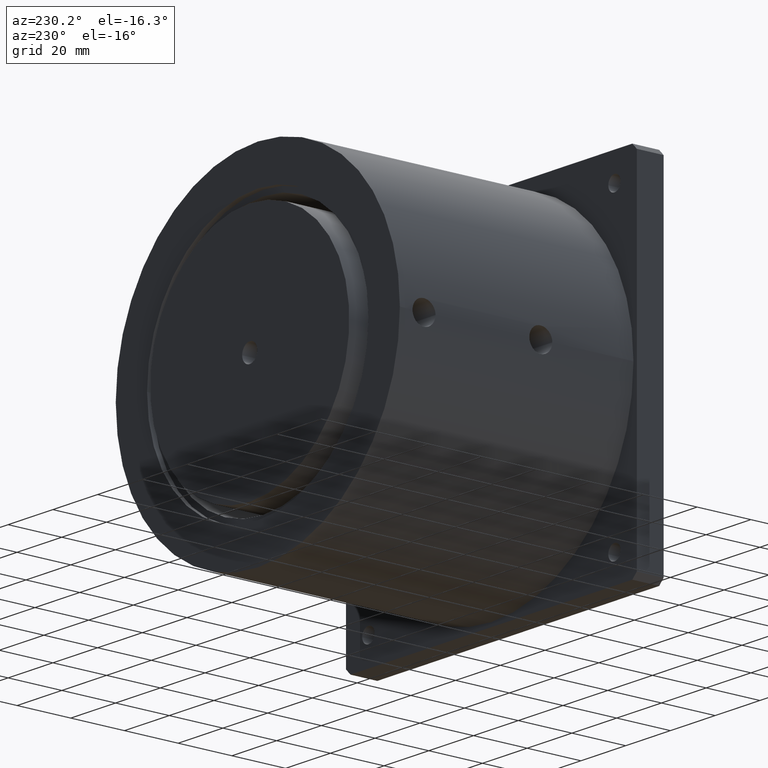
[diagram: clean part render]
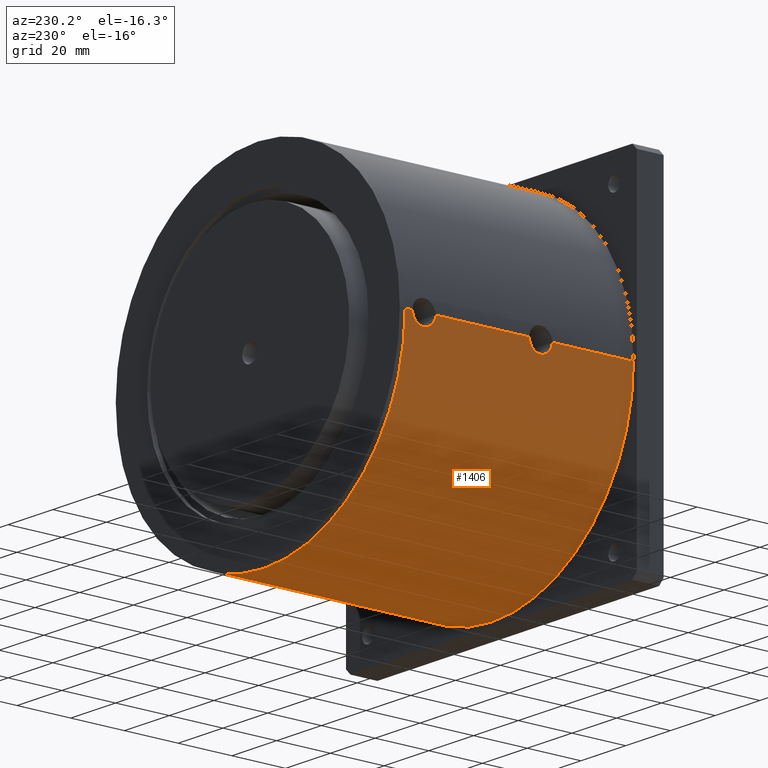
[diagram: same view with one face highlighted and labeled with its STEP entity id]
A machine part, auxiliary view. The second image highlights one B-rep face of the part: STEP entity #1406.
In plain terms, the highlighted cylindrical surface (partial cylindrical patch) has radius 63.5 mm, axis along (0, 1, 0).
Its self-contained STEP definition (entity closure, byte-faithful):
#324=CARTESIAN_POINT('',(0.E0,0.E0,0.E0));
#325=DIRECTION('',(0.E0,-1.E0,0.E0));
#326=DIRECTION('',(1.E0,0.E0,0.E0));
#327=AXIS2_PLACEMENT_3D('',#324,#325,#326);
#461=CARTESIAN_POINT('',(6.35E1,-4.2E1,0.E0));
#462=CARTESIAN_POINT('',(6.35E1,-4.2E1,4.111739713268E-1));
#463=CARTESIAN_POINT('',(6.349212482465E1,-4.193376923286E1,1.226031848427E0));
#464=CARTESIAN_POINT('',(6.345650340941E1,-4.162614915768E1,2.450282587218E0));
#465=CARTESIAN_POINT('',(6.340092316595E1,-4.111752546860E1,3.601443782851E0));
#466=CARTESIAN_POINT('',(6.333346787652E1,-4.044283814680E1,4.630226904437E0));
#467=CARTESIAN_POINT('',(6.325904022293E1,-3.959794426160E1,5.548670297436E0));
#468=CARTESIAN_POINT('',(6.318567779643E1,-3.859942399674E1,6.322780491696E0));
#469=CARTESIAN_POINT('',(6.312302237795E1,-3.749097035306E1,6.914755822668E0));
#470=CARTESIAN_POINT('',(6.307831866390E1,-3.633006378040E1,7.307751059662E0));
#471=CARTESIAN_POINT('',(6.305451009759E1,-3.511082024933E1,7.508666028182E0));
#472=CARTESIAN_POINT('',(6.305452994310E1,-3.388660127336E1,7.508502264195E0));
#473=CARTESIAN_POINT('',(6.307841741745E1,-3.266650161144E1,7.306907036757E0));
#474=CARTESIAN_POINT('',(6.312315437989E1,-3.150641210119E1,6.913554040186E0));
#475=CARTESIAN_POINT('',(6.318577784155E1,-3.039910278640E1,6.321763981315E0));
#476=CARTESIAN_POINT('',(6.325914332374E1,-2.940073206486E1,5.547558170630E0));
#477=CARTESIAN_POINT('',(6.333367591212E1,-2.855494563292E1,4.627441036006E0));
#478=CARTESIAN_POINT('',(6.340104196119E1,-2.788137819297E1,3.599220934138E0));
#479=CARTESIAN_POINT('',(6.345653490525E1,-2.737357697481E1,2.449302826038E0));
#480=CARTESIAN_POINT('',(6.349212745350E1,-2.706620924334E1,1.225733380057E0));
#481=CARTESIAN_POINT('',(6.35E1,-2.7E1,4.111187972690E-1));
#482=CARTESIAN_POINT('',(6.35E1,-2.7E1,0.E0));
#487=DIRECTION('',(0.E0,-1.E0,0.E0));
#488=VECTOR('',#487,4.3E1);
#489=CARTESIAN_POINT('',(6.35E1,-4.2E1,0.E0));
#490=LINE('',#489,#488);
#494=CARTESIAN_POINT('',(-6.35E1,-7.3717E1,0.E0));
#495=CARTESIAN_POINT('',(-6.35E1,-7.3717E1,2.601471991569E-1));
#496=CARTESIAN_POINT('',(-6.349686456068E1,-7.376305983293E1,
7.729657632272E-1));
#497=CARTESIAN_POINT('',(-6.348277530130E1,-7.397730819309E1,1.539767613514E0));
#498=CARTESIAN_POINT('',(-6.346152691590E1,-7.432369024386E1,2.243712505443E0));
#499=CARTESIAN_POINT('',(-6.343572567828E1,-7.479452254224E1,2.876155487197E0));
#500=CARTESIAN_POINT('',(-6.340922396927E1,-7.536342119673E1,3.405285996196E0));
#501=CARTESIAN_POINT('',(-6.338472137955E1,-7.602992900629E1,3.830273106018E0));
#502=CARTESIAN_POINT('',(-6.336577883594E1,-7.676778384986E1,4.128519267916E0));
#503=CARTESIAN_POINT('',(-6.335511662446E1,-7.757275389017E1,4.287220329257E0));
#504=CARTESIAN_POINT('',(-6.335478476048E1,-7.837410785284E1,4.292058519262E0));
#505=CARTESIAN_POINT('',(-6.336475362240E1,-7.917883316822E1,4.144030294750E0));
#506=CARTESIAN_POINT('',(-6.338323846146E1,-7.992302613176E1,3.854532842590E0));
#507=CARTESIAN_POINT('',(-6.340774256914E1,-8.060174865609E1,3.432721937202E0));
#508=CARTESIAN_POINT('',(-6.343455788899E1,-8.118291681221E1,2.902038304269E0));
#509=CARTESIAN_POINT('',(-6.346080030634E1,-8.166405621904E1,2.264709403857E0));
#510=CARTESIAN_POINT('',(-6.348239235134E1,-8.201675335537E1,1.556041474335E0));
#511=CARTESIAN_POINT('',(-6.349674497417E1,-8.223518450394E1,
7.850594776769E-1));
#512=CARTESIAN_POINT('',(-6.35E1,-8.2283E1,2.646875080307E-1));
#513=CARTESIAN_POINT('',(-6.35E1,-8.2283E1,0.E0));
#518=CARTESIAN_POINT('',(-6.35E1,-3.0217E1,0.E0));
#519=CARTESIAN_POINT('',(-6.35E1,-3.0217E1,2.601471991570E-1));
#520=CARTESIAN_POINT('',(-6.349686456068E1,-3.026305983293E1,
7.729657632272E-1));
#521=CARTESIAN_POINT('',(-6.348277530130E1,-3.047730819309E1,1.539767613514E0));
#522=CARTESIAN_POINT('',(-6.346152691590E1,-3.082369024386E1,2.243712505443E0));
#523=CARTESIAN_POINT('',(-6.343572567828E1,-3.129452254224E1,2.876155487197E0));
#524=CARTESIAN_POINT('',(-6.340922396927E1,-3.186342119673E1,3.405285996196E0));
#525=CARTESIAN_POINT('',(-6.338472137955E1,-3.252992900629E1,3.830273106018E0));
#526=CARTESIAN_POINT('',(-6.336577883594E1,-3.326778384986E1,4.128519267916E0));
#527=CARTESIAN_POINT('',(-6.335511662446E1,-3.407275389017E1,4.287220329257E0));
#528=CARTESIAN_POINT('',(-6.335478476048E1,-3.487410785284E1,4.292058519262E0));
#529=CARTESIAN_POINT('',(-6.336475362240E1,-3.567883316822E1,4.144030294750E0));
#530=CARTESIAN_POINT('',(-6.338323846146E1,-3.642302613176E1,3.854532842590E0));
#531=CARTESIAN_POINT('',(-6.340774256914E1,-3.710174865609E1,3.432721937202E0));
#532=CARTESIAN_POINT('',(-6.343455788899E1,-3.768291681221E1,2.902038304269E0));
#533=CARTESIAN_POINT('',(-6.346080030634E1,-3.816405621904E1,2.264709403857E0));
#534=CARTESIAN_POINT('',(-6.348239235134E1,-3.851675335537E1,1.556041474335E0));
#535=CARTESIAN_POINT('',(-6.349674497417E1,-3.873518450394E1,
7.850594776770E-1));
#536=CARTESIAN_POINT('',(-6.35E1,-3.8783E1,2.646875080307E-1));
#537=CARTESIAN_POINT('',(-6.35E1,-3.8783E1,0.E0));
#542=DIRECTION('',(0.E0,-1.E0,0.E0));
#543=VECTOR('',#542,2.7E1);
#544=CARTESIAN_POINT('',(6.35E1,0.E0,0.E0));
#545=LINE('',#544,#543);
#589=DIRECTION('',(0.E0,-1.E0,0.E0));
#590=VECTOR('',#589,3.0217E1);
#591=CARTESIAN_POINT('',(-6.35E1,0.E0,0.E0));
#592=LINE('',#591,#590);
#620=DIRECTION('',(0.E0,-1.E0,0.E0));
#621=VECTOR('',#620,3.4934E1);
#622=CARTESIAN_POINT('',(-6.35E1,-3.8783E1,0.E0));
#623=LINE('',#622,#621);
#651=DIRECTION('',(0.E0,-1.E0,0.E0));
#652=VECTOR('',#651,2.717E0);
#653=CARTESIAN_POINT('',(-6.35E1,-8.2283E1,0.E0));
#654=LINE('',#653,#652);
#797=CARTESIAN_POINT('',(0.E0,-8.5E1,0.E0));
#798=DIRECTION('',(0.E0,-1.E0,0.E0));
#799=DIRECTION('',(1.E0,0.E0,0.E0));
#800=AXIS2_PLACEMENT_3D('',#797,#798,#799);
#1214=CARTESIAN_POINT('',(6.35E1,-8.5E1,0.E0));
#1215=CARTESIAN_POINT('',(-6.35E1,-8.5E1,1.555301434917E-14));
#1216=VERTEX_POINT('',#1214);
#1217=VERTEX_POINT('',#1215);
#1218=CARTESIAN_POINT('',(6.35E1,0.E0,0.E0));
#1219=CARTESIAN_POINT('',(-6.35E1,0.E0,1.555301434917E-14));
#1220=VERTEX_POINT('',#1218);
#1221=VERTEX_POINT('',#1219);
#1308=VERTEX_POINT('',#494);
#1309=VERTEX_POINT('',#513);
#1318=VERTEX_POINT('',#518);
#1319=VERTEX_POINT('',#537);
#1324=VERTEX_POINT('',#461);
#1325=VERTEX_POINT('',#482);
#1380=CARTESIAN_POINT('',(0.E0,0.E0,0.E0));
#1381=DIRECTION('',(0.E0,-1.E0,0.E0));
#1382=DIRECTION('',(1.E0,0.E0,0.E0));
#1383=AXIS2_PLACEMENT_3D('',#1380,#1381,#1382);
#1384=CYLINDRICAL_SURFACE('',#1383,6.35E1);
#1386=ORIENTED_EDGE('',*,*,#1385,.F.);
#1388=ORIENTED_EDGE('',*,*,#1387,.T.);
#1390=ORIENTED_EDGE('',*,*,#1389,.T.);
#1392=ORIENTED_EDGE('',*,*,#1391,.F.);
#1394=ORIENTED_EDGE('',*,*,#1393,.F.);
#1396=ORIENTED_EDGE('',*,*,#1395,.F.);
#1398=ORIENTED_EDGE('',*,*,#1397,.F.);
#1400=ORIENTED_EDGE('',*,*,#1399,.F.);
#1401=ORIENTED_EDGE('',*,*,#1373,.F.);
#1403=ORIENTED_EDGE('',*,*,#1402,.T.);
#1404=EDGE_LOOP('',(#1386,#1388,#1390,#1392,#1394,#1396,#1398,#1400,#1401,
#1403));
#1405=FACE_OUTER_BOUND('',#1404,.F.);
#328=CIRCLE('',#327,6.35E1);
#483=B_SPLINE_CURVE_WITH_KNOTS('',3,(#461,#462,#463,#464,#465,#466,#467,#468,
#469,#470,#471,#472,#473,#474,#475,#476,#477,#478,#479,#480,#481,#482),
.UNSPECIFIED.,.F.,.F.,(4,1,1,1,1,1,1,1,1,1,1,1,1,1,1,1,1,1,1,4),(0.E0,
5.263157894737E-2,1.052631578947E-1,1.578947368421E-1,2.105263157895E-1,
2.631578947368E-1,3.157894736842E-1,3.684210526316E-1,4.210526315789E-1,
4.736842105263E-1,5.263157894737E-1,5.789473684211E-1,6.315789473684E-1,
6.842105263158E-1,7.368421052632E-1,7.894736842105E-1,8.421052631579E-1,
8.947368421053E-1,9.473684210526E-1,1.E0),.UNSPECIFIED.);
#514=B_SPLINE_CURVE_WITH_KNOTS('',3,(#494,#495,#496,#497,#498,#499,#500,#501,
#502,#503,#504,#505,#506,#507,#508,#509,#510,#511,#512,#513),.UNSPECIFIED.,.F.,
.F.,(4,1,1,1,1,1,1,1,1,1,1,1,1,1,1,1,1,4),(0.E0,5.882352941176E-2,
1.176470588235E-1,1.764705882353E-1,2.352941176471E-1,2.941176470588E-1,
3.529411764706E-1,4.117647058824E-1,4.705882352941E-1,5.294117647059E-1,
5.882352941176E-1,6.470588235294E-1,7.058823529412E-1,7.647058823529E-1,
8.235294117647E-1,8.823529411765E-1,9.411764705882E-1,1.E0),.UNSPECIFIED.);
#538=B_SPLINE_CURVE_WITH_KNOTS('',3,(#518,#519,#520,#521,#522,#523,#524,#525,
#526,#527,#528,#529,#530,#531,#532,#533,#534,#535,#536,#537),.UNSPECIFIED.,.F.,
.F.,(4,1,1,1,1,1,1,1,1,1,1,1,1,1,1,1,1,4),(0.E0,5.882352941176E-2,
1.176470588235E-1,1.764705882353E-1,2.352941176471E-1,2.941176470588E-1,
3.529411764706E-1,4.117647058824E-1,4.705882352941E-1,5.294117647059E-1,
5.882352941176E-1,6.470588235294E-1,7.058823529412E-1,7.647058823529E-1,
8.235294117647E-1,8.823529411765E-1,9.411764705882E-1,1.E0),.UNSPECIFIED.);
#801=CIRCLE('',#800,6.35E1);
#1373=EDGE_CURVE('',#1220,#1221,#328,.T.);
#1385=EDGE_CURVE('',#1324,#1325,#483,.T.);
#1387=EDGE_CURVE('',#1324,#1216,#490,.T.);
#1389=EDGE_CURVE('',#1216,#1217,#801,.T.);
#1391=EDGE_CURVE('',#1309,#1217,#654,.T.);
#1393=EDGE_CURVE('',#1308,#1309,#514,.T.);
#1395=EDGE_CURVE('',#1319,#1308,#623,.T.);
#1397=EDGE_CURVE('',#1318,#1319,#538,.T.);
#1399=EDGE_CURVE('',#1221,#1318,#592,.T.);
#1402=EDGE_CURVE('',#1220,#1325,#545,.T.);
#1406=ADVANCED_FACE('',(#1405),#1384,.T.);